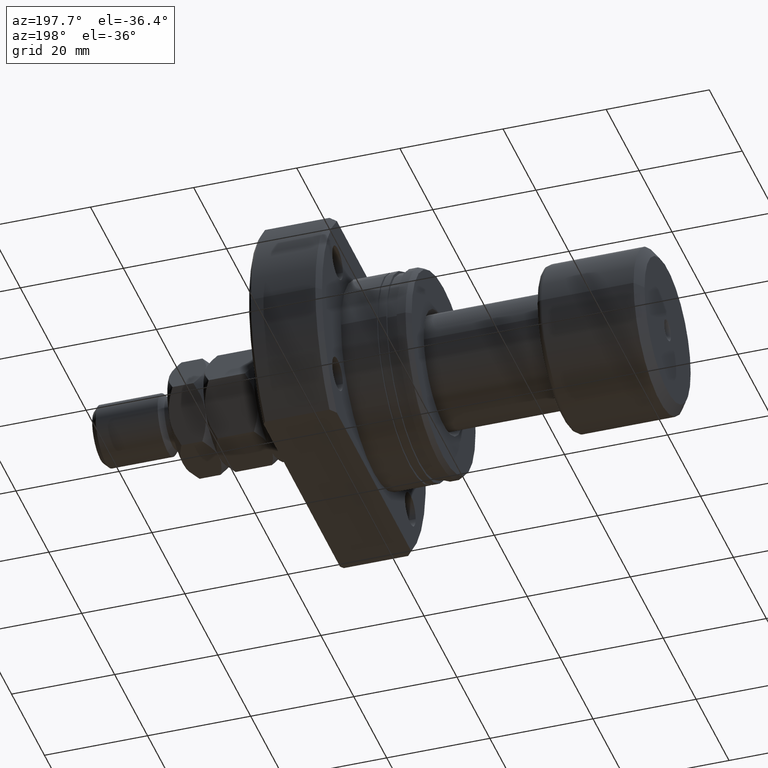
[diagram: clean part render]
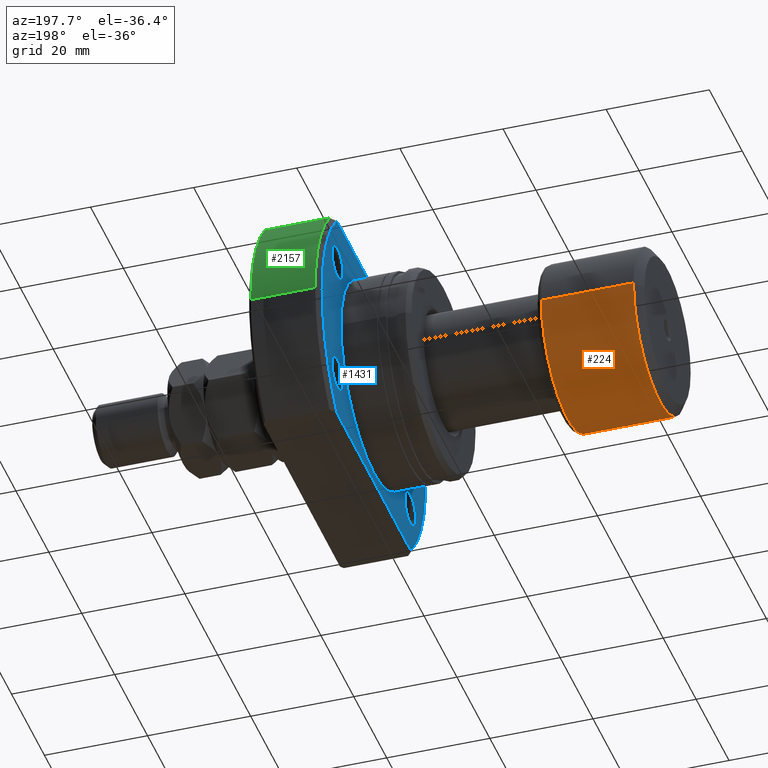
[diagram: same view with three faces highlighted in distinct colors, each labeled with its STEP entity id]
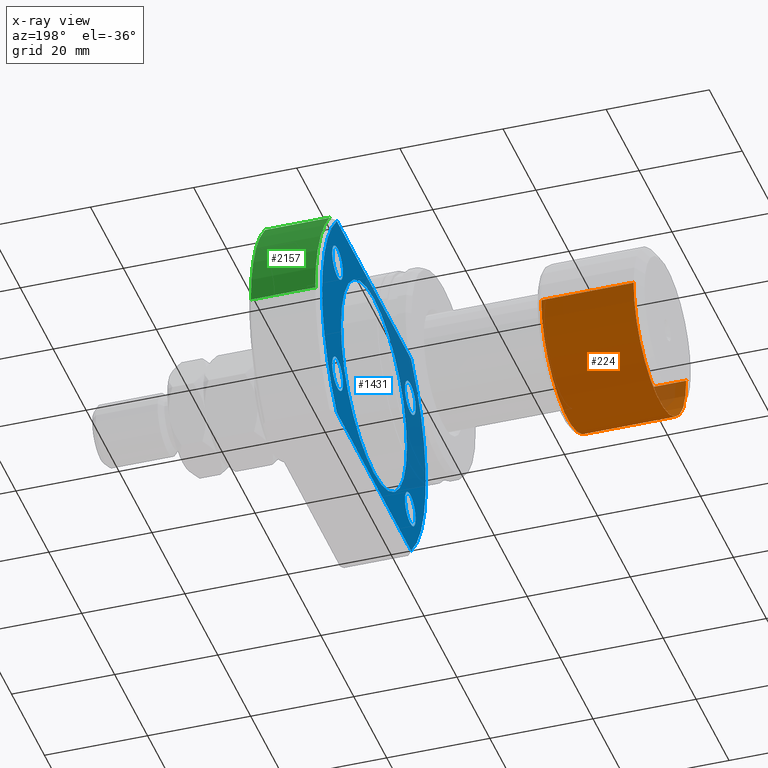
[diagram: x-ray of the same camera — body ghosted, the three highlighted faces saturated]
A machine part, auxiliary view with three faces highlighted in distinct colors.
The next image is the same camera in x-ray (body ghosted, the three faces saturated) — at least one of them is partly hidden behind the body in this view.
Their STEP definitions:

[orange] entity #224 — the highlighted cylindrical surface (partial cylindrical patch) has radius 16 mm, axis along (-1, -0, -0).
#168 = ORIENTED_EDGE ( 'NONE', *, *, #4263, .T. ) ;
#224 = ADVANCED_FACE ( 'NONE', ( #815 ), #1592, .T. ) ;
#304 = VECTOR ( 'NONE', #647, 1000.000000000000000 ) ;
#412 = EDGE_CURVE ( 'NONE', #4362, #1111, #2933, .T. ) ;
#416 = CARTESIAN_POINT ( 'NONE',  ( 1.500000000000002220, -16.00000000000000000, 1.959434878635765526E-15 ) ) ;
#425 = ORIENTED_EDGE ( 'NONE', *, *, #3043, .F. ) ;
#580 = DIRECTION ( 'NONE',  ( 1.355252715606880543E-17, -1.000000000000000000, 0.000000000000000000 ) ) ;
#607 = CARTESIAN_POINT ( 'NONE',  ( 19.40000000000000213, -16.00000000000000000, 0.000000000000000000 ) ) ;
#647 = DIRECTION ( 'NONE',  ( -1.000000000000000000, -1.069542322069065801E-17, -0.000000000000000000 ) ) ;
#727 = CARTESIAN_POINT ( 'NONE',  ( 1.711267715310505281E-16, -16.00000000000000000, 0.000000000000000000 ) ) ;
#815 = FACE_OUTER_BOUND ( 'NONE', #1394, .T. ) ;
#1111 = VERTEX_POINT ( 'NONE', #416 ) ;
#1259 = DIRECTION ( 'NONE',  ( -1.000000000000000000, -1.069542322069065801E-17, -0.000000000000000000 ) ) ;
#1308 = AXIS2_PLACEMENT_3D ( 'NONE', #2615, #1259, #580 ) ;
#1347 = CARTESIAN_POINT ( 'NONE',  ( 1.500000000000001776, 16.00000000000000000, 0.000000000000000000 ) ) ;
#1394 = EDGE_LOOP ( 'NONE', ( #425, #168, #4394, #3847 ) ) ;
#1492 = DIRECTION ( 'NONE',  ( -1.000000000000000000, -1.069542322069065801E-17, -0.000000000000000000 ) ) ;
#1592 = CYLINDRICAL_SURFACE ( 'NONE', #4530, 16.00000000000000000 ) ;
#1693 = CIRCLE ( 'NONE', #4242, 16.00000000000000000 ) ;
#1835 = VERTEX_POINT ( 'NONE', #1347 ) ;
#1859 = DIRECTION ( 'NONE',  ( -1.000000000000000000, -1.069542322069065801E-17, -0.000000000000000000 ) ) ;
#1939 = CARTESIAN_POINT ( 'NONE',  ( 0.000000000000000000, 0.000000000000000000, 0.000000000000000000 ) ) ;
#2350 = LINE ( 'NONE', #2857, #304 ) ;
#2383 = DIRECTION ( 'NONE',  ( 0.000000000000000000, -1.000000000000000000, 0.000000000000000000 ) ) ;
#2584 = EDGE_CURVE ( 'NONE', #1835, #1111, #3408, .T. ) ;
#2615 = CARTESIAN_POINT ( 'NONE',  ( 1.500000000000001998, 1.604313483103600935E-17, 0.000000000000000000 ) ) ;
#2738 = DIRECTION ( 'NONE',  ( 1.069542322069065801E-17, -1.000000000000000000, 0.000000000000000000 ) ) ;
#2857 = CARTESIAN_POINT ( 'NONE',  ( -1.711267715310505281E-16, 16.00000000000000000, 1.959434878635765131E-15 ) ) ;
#2933 = LINE ( 'NONE', #727, #3466 ) ;
#3043 = EDGE_CURVE ( 'NONE', #3552, #1835, #2350, .T. ) ;
#3408 = CIRCLE ( 'NONE', #1308, 16.00000000000000000 ) ;
#3466 = VECTOR ( 'NONE', #1859, 1000.000000000000000 ) ;
#3502 = DIRECTION ( 'NONE',  ( -1.000000000000000000, -1.069542322069065801E-17, -0.000000000000000000 ) ) ;
#3552 = VERTEX_POINT ( 'NONE', #4587 ) ;
#3818 = CARTESIAN_POINT ( 'NONE',  ( 19.40000000000000213, 2.074912104813987675E-16, 0.000000000000000000 ) ) ;
#3847 = ORIENTED_EDGE ( 'NONE', *, *, #2584, .F. ) ;
#4242 = AXIS2_PLACEMENT_3D ( 'NONE', #3818, #1492, #2383 ) ;
#4263 = EDGE_CURVE ( 'NONE', #3552, #4362, #1693, .T. ) ;
#4362 = VERTEX_POINT ( 'NONE', #607 ) ;
#4394 = ORIENTED_EDGE ( 'NONE', *, *, #412, .T. ) ;
#4530 = AXIS2_PLACEMENT_3D ( 'NONE', #1939, #3502, #2738 ) ;
#4587 = CARTESIAN_POINT ( 'NONE',  ( 19.40000000000000213, 16.00000000000000000, 1.959434878635765131E-15 ) ) ;

[blue] entity #1431 — the highlighted planar face has unit normal (1, 0, 0).
#1 = CARTESIAN_POINT ( 'NONE',  ( 13.50000000000000178, 1.803570740562465225E-16, 0.000000000000000000 ) ) ;
#22 = CARTESIAN_POINT ( 'NONE',  ( 13.50000000000000178, -25.35000000000038511, 12.74999999999999822 ) ) ;
#104 = DIRECTION ( 'NONE',  ( 0.000000000000000000, 1.000000000000000000, 0.000000000000000000 ) ) ;
#117 = ORIENTED_EDGE ( 'NONE', *, *, #2404, .T. ) ;
#130 = CIRCLE ( 'NONE', #1541, 31.49999999999993250 ) ;
#136 = EDGE_CURVE ( 'NONE', #1542, #4140, #1439, .T. ) ;
#147 = VERTEX_POINT ( 'NONE', #1647 ) ;
#257 = DIRECTION ( 'NONE',  ( 1.000000000000000000, 1.335978326342566810E-17, -0.000000000000000000 ) ) ;
#259 = PLANE ( 'NONE',  #4464 ) ;
#308 = AXIS2_PLACEMENT_3D ( 'NONE', #3605, #4188, #1986 ) ;
#318 = FACE_BOUND ( 'NONE', #1265, .T. ) ;
#355 = CARTESIAN_POINT ( 'NONE',  ( 13.50000000000000178, -22.10000000000038511, 12.74999999999999822 ) ) ;
#363 = CARTESIAN_POINT ( 'NONE',  ( 13.50000000000000178, -19.99999999999999645, 0.000000000000000000 ) ) ;
#390 = CARTESIAN_POINT ( 'NONE',  ( 13.50000000000000355, -19.99999999999999645, 2.449293598294706119E-15 ) ) ;
#419 = EDGE_CURVE ( 'NONE', #939, #1753, #1363, .T. ) ;
#422 = CARTESIAN_POINT ( 'NONE',  ( 13.50000000000000178, 1.803570740562465225E-16, 0.000000000000000000 ) ) ;
#451 = CIRCLE ( 'NONE', #2234, 19.99999999999999645 ) ;
#570 = VERTEX_POINT ( 'NONE', #2983 ) ;
#590 = CARTESIAN_POINT ( 'NONE',  ( 13.50000000000000178, 25.34999999999961418, 12.74999999999999822 ) ) ;
#604 = VERTEX_POINT ( 'NONE', #22 ) ;
#608 = AXIS2_PLACEMENT_3D ( 'NONE', #3050, #3386, #2977 ) ;
#645 = CARTESIAN_POINT ( 'NONE',  ( 13.50000000000000178, 31.49999999999993250, 0.000000000000000000 ) ) ;
#662 = FACE_BOUND ( 'NONE', #3053, .T. ) ;
#685 = CARTESIAN_POINT ( 'NONE',  ( 13.50000000000000178, -22.10000000000038511, -12.75000000000000178 ) ) ;
#732 = DIRECTION ( 'NONE',  ( 0.000000000000000000, 1.000000000000000000, 0.000000000000000000 ) ) ;
#743 = DIRECTION ( 'NONE',  ( 1.000000000000000000, 1.335978326342566810E-17, -0.000000000000000000 ) ) ;
#754 = ORIENTED_EDGE ( 'NONE', *, *, #4116, .T. ) ;
#761 = ORIENTED_EDGE ( 'NONE', *, *, #1717, .F. ) ;
#790 = DIRECTION ( 'NONE',  ( 0.000000000000000000, 1.000000000000000000, 0.000000000000000000 ) ) ;
#838 = AXIS2_PLACEMENT_3D ( 'NONE', #3476, #945, #104 ) ;
#874 = ORIENTED_EDGE ( 'NONE', *, *, #1254, .T. ) ;
#913 = EDGE_CURVE ( 'NONE', #4650, #604, #1759, .T. ) ;
#939 = VERTEX_POINT ( 'NONE', #4757 ) ;
#945 = DIRECTION ( 'NONE',  ( 1.000000000000000000, 1.335978326342566810E-17, -0.000000000000000000 ) ) ;
#983 = EDGE_LOOP ( 'NONE', ( #117, #1678 ) ) ;
#989 = CIRCLE ( 'NONE', #2769, 31.49999999999993250 ) ;
#992 = CIRCLE ( 'NONE', #2009, 3.249999999999999556 ) ;
#1065 = CARTESIAN_POINT ( 'NONE',  ( 13.50000000000000355, 1.803570740562465471E-16, 0.000000000000000000 ) ) ;
#1090 = VERTEX_POINT ( 'NONE', #1563 ) ;
#1091 = LINE ( 'NONE', #4046, #2022 ) ;
#1137 = CIRCLE ( 'NONE', #3926, 3.249999999999999556 ) ;
#1187 = DIRECTION ( 'NONE',  ( 1.335978326342566810E-17, -1.000000000000000000, 0.000000000000000000 ) ) ;
#1254 = EDGE_CURVE ( 'NONE', #4601, #147, #1137, .T. ) ;
#1265 = EDGE_LOOP ( 'NONE', ( #4543, #2512 ) ) ;
#1363 = CIRCLE ( 'NONE', #2921, 31.49999999999993250 ) ;
#1388 = DIRECTION ( 'NONE',  ( -1.335978326342566810E-17, 1.000000000000000000, 0.000000000000000000 ) ) ;
#1431 = ADVANCED_FACE ( 'NONE', ( #318, #1799, #662, #3291, #4052, #4030 ), #259, .F. ) ;
#1439 = CIRCLE ( 'NONE', #4138, 19.99999999999999645 ) ;
#1475 = CIRCLE ( 'NONE', #4098, 3.249999999999999556 ) ;
#1541 = AXIS2_PLACEMENT_3D ( 'NONE', #4050, #257, #732 ) ;
#1542 = VERTEX_POINT ( 'NONE', #390 ) ;
#1563 = CARTESIAN_POINT ( 'NONE',  ( 13.50000000000000178, 22.54440063519089676, 22.00000000000000355 ) ) ;
#1600 = AXIS2_PLACEMENT_3D ( 'NONE', #3321, #1875, #3657 ) ;
#1647 = CARTESIAN_POINT ( 'NONE',  ( 13.50000000000000178, 18.84999999999961773, -12.75000000000000178 ) ) ;
#1667 = EDGE_CURVE ( 'NONE', #1920, #4300, #2228, .T. ) ;
#1674 = CARTESIAN_POINT ( 'NONE',  ( 13.50000000000000178, 18.84999999999961773, 12.74999999999999822 ) ) ;
#1678 = ORIENTED_EDGE ( 'NONE', *, *, #136, .T. ) ;
#1703 = DIRECTION ( 'NONE',  ( 1.000000000000000000, 1.335978326342566810E-17, -0.000000000000000000 ) ) ;
#1717 = EDGE_CURVE ( 'NONE', #4033, #1090, #989, .T. ) ;
#1729 = EDGE_LOOP ( 'NONE', ( #1770, #1869 ) ) ;
#1753 = VERTEX_POINT ( 'NONE', #4107 ) ;
#1759 = CIRCLE ( 'NONE', #1600, 3.249999999999999556 ) ;
#1770 = ORIENTED_EDGE ( 'NONE', *, *, #913, .T. ) ;
#1799 = FACE_BOUND ( 'NONE', #1729, .T. ) ;
#1818 = DIRECTION ( 'NONE',  ( 0.000000000000000000, 1.000000000000000000, 0.000000000000000000 ) ) ;
#1863 = LINE ( 'NONE', #3400, #4325 ) ;
#1869 = ORIENTED_EDGE ( 'NONE', *, *, #3681, .T. ) ;
#1875 = DIRECTION ( 'NONE',  ( 1.000000000000000000, 1.335978326342566810E-17, -0.000000000000000000 ) ) ;
#1920 = VERTEX_POINT ( 'NONE', #590 ) ;
#1930 = DIRECTION ( 'NONE',  ( 1.000000000000000000, 1.335978326342566810E-17, -0.000000000000000000 ) ) ;
#1971 = EDGE_LOOP ( 'NONE', ( #3593, #761, #3436, #4186, #4055 ) ) ;
#1972 = EDGE_LOOP ( 'NONE', ( #874, #2133 ) ) ;
#1986 = DIRECTION ( 'NONE',  ( 0.000000000000000000, 1.000000000000000000, 0.000000000000000000 ) ) ;
#2009 = AXIS2_PLACEMENT_3D ( 'NONE', #685, #2843, #1818 ) ;
#2012 = CIRCLE ( 'NONE', #608, 3.249999999999999556 ) ;
#2022 = VECTOR ( 'NONE', #2393, 1000.000000000000000 ) ;
#2133 = ORIENTED_EDGE ( 'NONE', *, *, #2642, .T. ) ;
#2210 = DIRECTION ( 'NONE',  ( 0.000000000000000000, 1.000000000000000000, 0.000000000000000000 ) ) ;
#2228 = CIRCLE ( 'NONE', #2613, 3.249999999999999556 ) ;
#2234 = AXIS2_PLACEMENT_3D ( 'NONE', #1065, #4004, #2210 ) ;
#2308 = CARTESIAN_POINT ( 'NONE',  ( 13.50000000000000355, 19.99999999999999645, 0.000000000000000000 ) ) ;
#2311 = CIRCLE ( 'NONE', #838, 3.249999999999999556 ) ;
#2349 = DIRECTION ( 'NONE',  ( 0.000000000000000000, 1.000000000000000000, 0.000000000000000000 ) ) ;
#2352 = EDGE_CURVE ( 'NONE', #3860, #570, #992, .T. ) ;
#2371 = CARTESIAN_POINT ( 'NONE',  ( 13.50000000000000355, 1.803570740562465471E-16, 0.000000000000000000 ) ) ;
#2393 = DIRECTION ( 'NONE',  ( 1.335978326342566810E-17, -1.000000000000000000, 0.000000000000000000 ) ) ;
#2404 = EDGE_CURVE ( 'NONE', #4140, #1542, #451, .T. ) ;
#2494 = EDGE_CURVE ( 'NONE', #3774, #4033, #130, .T. ) ;
#2505 = ORIENTED_EDGE ( 'NONE', *, *, #2352, .T. ) ;
#2512 = ORIENTED_EDGE ( 'NONE', *, *, #3134, .T. ) ;
#2613 = AXIS2_PLACEMENT_3D ( 'NONE', #2721, #4213, #3478 ) ;
#2642 = EDGE_CURVE ( 'NONE', #147, #4601, #2311, .T. ) ;
#2721 = CARTESIAN_POINT ( 'NONE',  ( 13.50000000000000178, 22.09999999999961773, 12.74999999999999822 ) ) ;
#2769 = AXIS2_PLACEMENT_3D ( 'NONE', #422, #3372, #790 ) ;
#2843 = DIRECTION ( 'NONE',  ( 1.000000000000000000, 1.335978326342566810E-17, -0.000000000000000000 ) ) ;
#2921 = AXIS2_PLACEMENT_3D ( 'NONE', #1, #743, #3637 ) ;
#2977 = DIRECTION ( 'NONE',  ( 0.000000000000000000, 1.000000000000000000, 0.000000000000000000 ) ) ;
#2983 = CARTESIAN_POINT ( 'NONE',  ( 13.50000000000000178, -25.35000000000038511, -12.75000000000000178 ) ) ;
#2994 = EDGE_CURVE ( 'NONE', #1090, #939, #1863, .T. ) ;
#3050 = CARTESIAN_POINT ( 'NONE',  ( 13.50000000000000178, -22.10000000000038511, -12.75000000000000178 ) ) ;
#3053 = EDGE_LOOP ( 'NONE', ( #2505, #754 ) ) ;
#3056 = CARTESIAN_POINT ( 'NONE',  ( 13.50000000000000178, 22.54440063519089676, -22.00000000000000355 ) ) ;
#3134 = EDGE_CURVE ( 'NONE', #4300, #1920, #4331, .T. ) ;
#3198 = DIRECTION ( 'NONE',  ( 0.000000000000000000, 1.000000000000000000, 0.000000000000000000 ) ) ;
#3238 = DIRECTION ( 'NONE',  ( 1.000000000000000000, 1.335978326342566810E-17, -0.000000000000000000 ) ) ;
#3291 = FACE_BOUND ( 'NONE', #1972, .T. ) ;
#3321 = CARTESIAN_POINT ( 'NONE',  ( 13.50000000000000178, -22.10000000000038511, 12.74999999999999822 ) ) ;
#3372 = DIRECTION ( 'NONE',  ( 1.000000000000000000, 1.335978326342566810E-17, -0.000000000000000000 ) ) ;
#3386 = DIRECTION ( 'NONE',  ( 1.000000000000000000, 1.335978326342566810E-17, -0.000000000000000000 ) ) ;
#3400 = CARTESIAN_POINT ( 'NONE',  ( 13.50000000000000178, -19.99999999999999645, 22.00000000000000355 ) ) ;
#3433 = CARTESIAN_POINT ( 'NONE',  ( 13.50000000000000178, 25.34999999999961418, -12.75000000000000178 ) ) ;
#3436 = ORIENTED_EDGE ( 'NONE', *, *, #2494, .F. ) ;
#3464 = DIRECTION ( 'NONE',  ( 0.000000000000000000, 1.000000000000000000, 0.000000000000000000 ) ) ;
#3476 = CARTESIAN_POINT ( 'NONE',  ( 13.50000000000000178, 22.09999999999961773, -12.75000000000000178 ) ) ;
#3478 = DIRECTION ( 'NONE',  ( 0.000000000000000000, 1.000000000000000000, 0.000000000000000000 ) ) ;
#3593 = ORIENTED_EDGE ( 'NONE', *, *, #2994, .F. ) ;
#3605 = CARTESIAN_POINT ( 'NONE',  ( 13.50000000000000178, 22.09999999999961773, 12.74999999999999822 ) ) ;
#3637 = DIRECTION ( 'NONE',  ( 0.000000000000000000, 1.000000000000000000, 0.000000000000000000 ) ) ;
#3657 = DIRECTION ( 'NONE',  ( 0.000000000000000000, 1.000000000000000000, 0.000000000000000000 ) ) ;
#3681 = EDGE_CURVE ( 'NONE', #604, #4650, #1475, .T. ) ;
#3774 = VERTEX_POINT ( 'NONE', #3056 ) ;
#3832 = EDGE_CURVE ( 'NONE', #3774, #1753, #1091, .T. ) ;
#3860 = VERTEX_POINT ( 'NONE', #4296 ) ;
#3926 = AXIS2_PLACEMENT_3D ( 'NONE', #4289, #1703, #3198 ) ;
#4004 = DIRECTION ( 'NONE',  ( 1.000000000000000000, 1.335978326342566810E-17, -0.000000000000000000 ) ) ;
#4030 = FACE_OUTER_BOUND ( 'NONE', #1971, .T. ) ;
#4033 = VERTEX_POINT ( 'NONE', #645 ) ;
#4046 = CARTESIAN_POINT ( 'NONE',  ( 13.50000000000000178, -19.99999999999999645, -22.00000000000000355 ) ) ;
#4050 = CARTESIAN_POINT ( 'NONE',  ( 13.50000000000000178, 1.803570740562465225E-16, 0.000000000000000000 ) ) ;
#4052 = FACE_BOUND ( 'NONE', #983, .T. ) ;
#4055 = ORIENTED_EDGE ( 'NONE', *, *, #419, .F. ) ;
#4094 = CARTESIAN_POINT ( 'NONE',  ( 13.50000000000000178, -18.85000000000038867, 12.74999999999999822 ) ) ;
#4098 = AXIS2_PLACEMENT_3D ( 'NONE', #355, #1930, #3464 ) ;
#4107 = CARTESIAN_POINT ( 'NONE',  ( 13.50000000000001421, -22.54440063519093940, -22.00000000000000355 ) ) ;
#4116 = EDGE_CURVE ( 'NONE', #570, #3860, #2012, .T. ) ;
#4138 = AXIS2_PLACEMENT_3D ( 'NONE', #2371, #4157, #2349 ) ;
#4140 = VERTEX_POINT ( 'NONE', #2308 ) ;
#4157 = DIRECTION ( 'NONE',  ( 1.000000000000000000, 1.335978326342566810E-17, -0.000000000000000000 ) ) ;
#4186 = ORIENTED_EDGE ( 'NONE', *, *, #3832, .T. ) ;
#4188 = DIRECTION ( 'NONE',  ( 1.000000000000000000, 1.335978326342566810E-17, -0.000000000000000000 ) ) ;
#4213 = DIRECTION ( 'NONE',  ( 1.000000000000000000, 1.335978326342566810E-17, -0.000000000000000000 ) ) ;
#4289 = CARTESIAN_POINT ( 'NONE',  ( 13.50000000000000178, 22.09999999999961773, -12.75000000000000178 ) ) ;
#4296 = CARTESIAN_POINT ( 'NONE',  ( 13.50000000000000178, -18.85000000000038867, -12.75000000000000178 ) ) ;
#4300 = VERTEX_POINT ( 'NONE', #1674 ) ;
#4325 = VECTOR ( 'NONE', #1187, 1000.000000000000000 ) ;
#4331 = CIRCLE ( 'NONE', #308, 3.249999999999999556 ) ;
#4464 = AXIS2_PLACEMENT_3D ( 'NONE', #363, #3238, #1388 ) ;
#4543 = ORIENTED_EDGE ( 'NONE', *, *, #1667, .T. ) ;
#4601 = VERTEX_POINT ( 'NONE', #3433 ) ;
#4650 = VERTEX_POINT ( 'NONE', #4094 ) ;
#4757 = CARTESIAN_POINT ( 'NONE',  ( 13.50000000000001421, -22.54440063519093940, 22.00000000000000355 ) ) ;

[green] entity #2157 — the highlighted cylindrical surface (partial cylindrical patch) has radius 32.5 mm, axis along (1, 0, 0).
#88 = CYLINDRICAL_SURFACE ( 'NONE', #1149, 32.49999999999991473 ) ;
#111 = DIRECTION ( 'NONE',  ( 0.000000000000000000, 1.000000000000000000, 0.000000000000000000 ) ) ;
#279 = CIRCLE ( 'NONE', #2541, 32.49999999999991473 ) ;
#288 = CARTESIAN_POINT ( 'NONE',  ( -2.428612866367529932E-13, 23.92174742781206120, 22.00000000000000000 ) ) ;
#395 = LINE ( 'NONE', #3026, #3020 ) ;
#491 = FACE_OUTER_BOUND ( 'NONE', #3515, .T. ) ;
#492 = DIRECTION ( 'NONE',  ( 1.000000000000000000, 1.335978326342566810E-17, -0.000000000000000000 ) ) ;
#661 = LINE ( 'NONE', #288, #1932 ) ;
#669 = DIRECTION ( 'NONE',  ( 1.000000000000000000, 1.335978326342566810E-17, -0.000000000000000000 ) ) ;
#902 = CARTESIAN_POINT ( 'NONE',  ( 14.49999999999999289, 23.92174742781164198, 22.00000000000000000 ) ) ;
#980 = EDGE_CURVE ( 'NONE', #2282, #3583, #279, .T. ) ;
#995 = DIRECTION ( 'NONE',  ( 0.000000000000000000, 1.000000000000000000, 0.000000000000000000 ) ) ;
#1149 = AXIS2_PLACEMENT_3D ( 'NONE', #3072, #3459, #111 ) ;
#1358 = DIRECTION ( 'NONE',  ( 1.000000000000000000, 1.335978326342566810E-17, -0.000000000000000000 ) ) ;
#1522 = VERTEX_POINT ( 'NONE', #2233 ) ;
#1734 = ORIENTED_EDGE ( 'NONE', *, *, #4503, .T. ) ;
#1804 = ORIENTED_EDGE ( 'NONE', *, *, #980, .T. ) ;
#1932 = VECTOR ( 'NONE', #2944, 1000.000000000000000 ) ;
#2157 = ADVANCED_FACE ( 'NONE', ( #491 ), #88, .T. ) ;
#2233 = CARTESIAN_POINT ( 'NONE',  ( 27.00000000000007105, 23.92174742781127961, 22.00000000000000000 ) ) ;
#2282 = VERTEX_POINT ( 'NONE', #2382 ) ;
#2345 = EDGE_CURVE ( 'NONE', #2387, #1522, #4319, .T. ) ;
#2382 = CARTESIAN_POINT ( 'NONE',  ( 14.49999999999999289, 32.49999999999991473, 0.000000000000000000 ) ) ;
#2387 = VERTEX_POINT ( 'NONE', #4749 ) ;
#2444 = ORIENTED_EDGE ( 'NONE', *, *, #4183, .F. ) ;
#2516 = CARTESIAN_POINT ( 'NONE',  ( 14.49999999999999289, 1.937168573196720858E-16, 0.000000000000000000 ) ) ;
#2526 = ORIENTED_EDGE ( 'NONE', *, *, #2345, .F. ) ;
#2541 = AXIS2_PLACEMENT_3D ( 'NONE', #2516, #669, #2564 ) ;
#2564 = DIRECTION ( 'NONE',  ( 0.000000000000000000, 1.000000000000000000, 0.000000000000000000 ) ) ;
#2944 = DIRECTION ( 'NONE',  ( 1.000000000000000000, -2.886466111666351885E-14, -0.000000000000000000 ) ) ;
#3020 = VECTOR ( 'NONE', #492, 1000.000000000000000 ) ;
#3026 = CARTESIAN_POINT ( 'NONE',  ( 27.50000000000000355, 32.49999999999991473, 0.000000000000000000 ) ) ;
#3072 = CARTESIAN_POINT ( 'NONE',  ( 27.50000000000000355, 3.673940397442059375E-16, 0.000000000000000000 ) ) ;
#3459 = DIRECTION ( 'NONE',  ( 1.000000000000000000, 1.335978326342566810E-17, -0.000000000000000000 ) ) ;
#3484 = CARTESIAN_POINT ( 'NONE',  ( 27.00000000000008527, 3.607141481124941789E-16, 0.000000000000000000 ) ) ;
#3515 = EDGE_LOOP ( 'NONE', ( #2444, #1804, #1734, #2526 ) ) ;
#3583 = VERTEX_POINT ( 'NONE', #902 ) ;
#4183 = EDGE_CURVE ( 'NONE', #2282, #2387, #395, .T. ) ;
#4319 = CIRCLE ( 'NONE', #4549, 32.49999999999991473 ) ;
#4503 = EDGE_CURVE ( 'NONE', #3583, #1522, #661, .T. ) ;
#4549 = AXIS2_PLACEMENT_3D ( 'NONE', #3484, #1358, #995 ) ;
#4749 = CARTESIAN_POINT ( 'NONE',  ( 27.00000000000008527, 32.49999999999991473, 0.000000000000000000 ) ) ;